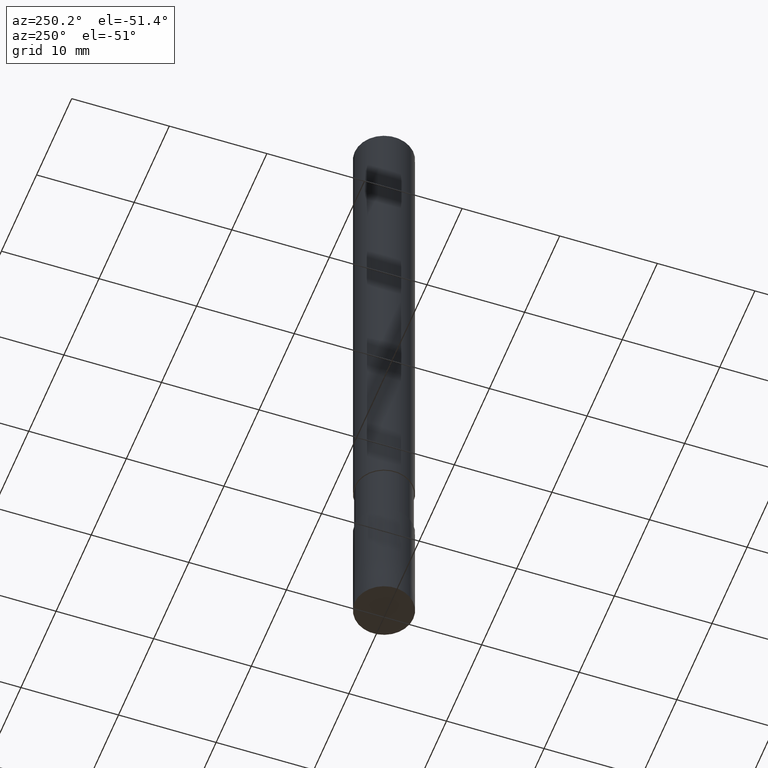
[diagram: clean part render]
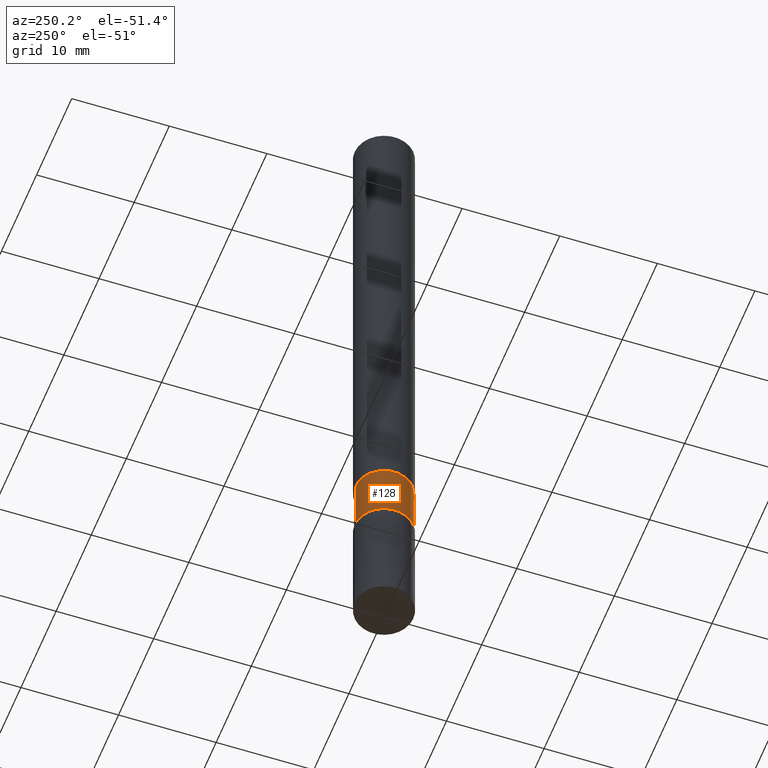
[diagram: same view with one face highlighted and labeled with its STEP entity id]
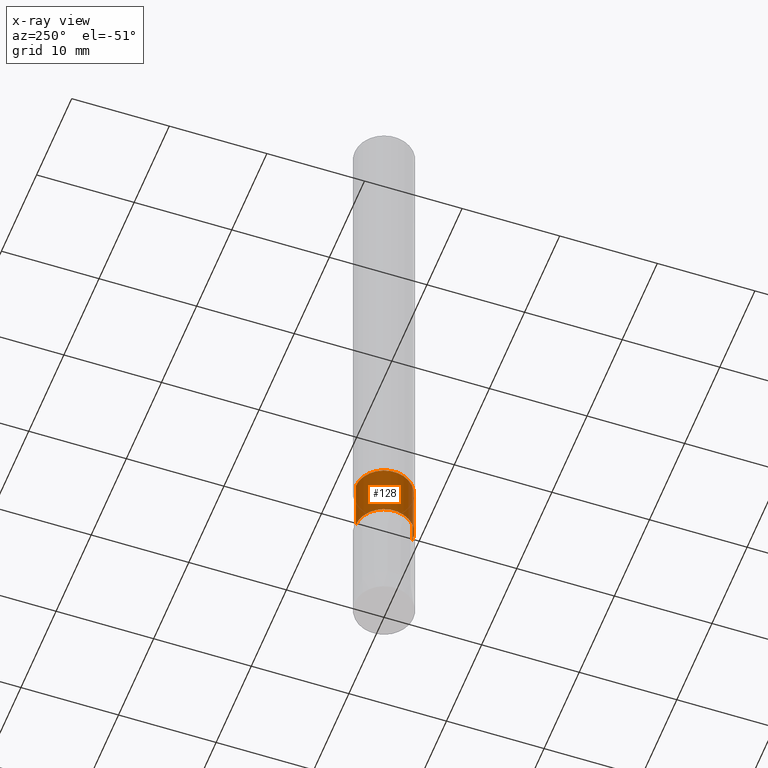
[diagram: x-ray of the same camera — body ghosted, the highlighted face saturated]
A machine part, auxiliary view. The second image highlights one B-rep face of the part: STEP entity #128.
The next image is the same camera in x-ray: the body ghosted, the highlighted face saturated — about 0% of this face is hidden behind the body in this view.
In plain terms, the highlighted cylindrical surface (edge-blend (fillet) strip) has radius 2.9 mm, axis along (-0, -0, 1).
Its self-contained STEP definition (entity closure, byte-faithful):
#102=VERTEX_POINT('',#227);
#104=EDGE_CURVE('',#168,#102,#229,.T.);
#128=ADVANCED_FACE('',(#255),#256,.T.);
#132=EDGE_CURVE('',#154,#146,#260,.T.);
#138=EDGE_CURVE('',#146,#102,#266,.T.);
#146=VERTEX_POINT('',#275);
#154=VERTEX_POINT('',#286);
#156=EDGE_CURVE('',#168,#154,#288,.T.);
#168=VERTEX_POINT('',#302);
#227=CARTESIAN_POINT('',(0.0,2.89995,-58.0));
#229=CIRCLE('',#362,2.89995);
#255=FACE_OUTER_BOUND('',#395,.T.);
#256=CYLINDRICAL_SURFACE('',#396,2.89995);
#260=CIRCLE('',#401,2.89995);
#266=LINE('',#410,#411);
#275=CARTESIAN_POINT('',(0.0,2.89995,-52.0));
#286=CARTESIAN_POINT('',(3.5512971957672E-016,-2.89995,-52.0));
#288=LINE('',#436,#437);
#302=CARTESIAN_POINT('',(3.5512971957672E-016,-2.89995,-58.0));
#362=AXIS2_PLACEMENT_3D('',#521,#522,#523);
#395=EDGE_LOOP('',(#550,#551,#552,#553));
#396=AXIS2_PLACEMENT_3D('',#554,#555,#556);
#401=AXIS2_PLACEMENT_3D('',#557,#558,#559);
#410=CARTESIAN_POINT('',(-3.5512971957672E-016,2.89995,-55.0));
#411=VECTOR('',#561,1.0);
#436=CARTESIAN_POINT('',(3.5512971957672E-016,-2.89995,-55.0));
#437=VECTOR('',#585,1.0);
#521=CARTESIAN_POINT('',(0.0,0.0,-58.0));
#522=DIRECTION('',(0.0,0.0,-1.0));
#523=DIRECTION('',(0.0,1.0,0.0));
#550=ORIENTED_EDGE('',*,*,#138,.T.);
#551=ORIENTED_EDGE('',*,*,#104,.F.);
#552=ORIENTED_EDGE('',*,*,#156,.T.);
#553=ORIENTED_EDGE('',*,*,#132,.T.);
#554=CARTESIAN_POINT('',(0.0,0.0,-55.0));
#555=DIRECTION('',(-0.0,-0.0,1.0));
#556=DIRECTION('',(0.0,1.0,0.0));
#557=CARTESIAN_POINT('',(0.0,0.0,-52.0));
#558=DIRECTION('',(0.0,0.0,-1.0));
#559=DIRECTION('',(0.0,1.0,0.0));
#561=DIRECTION('',(0.0,0.0,-1.0));
#585=DIRECTION('',(-0.0,-0.0,1.0));